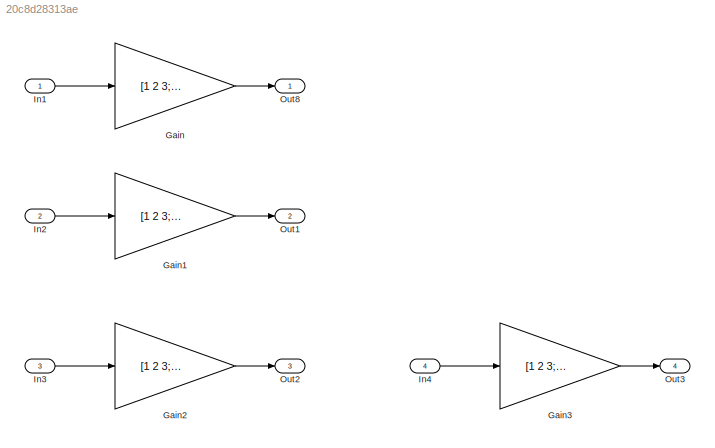
MODEL slx_20c8d28313ae
KIND model
CONFIG AbsTol = auto
CONFIG EnableMultiTasking = off
CONFIG FixedStep = 0.200000
CONFIG MaxStep = auto
CONFIG MinStep = auto
CONFIG RelTol = 1e-3
CONFIG SampleTimeConstraint = Unconstrained
CONFIG Solver = FixedStepDiscrete
CONFIG SolverName = FixedStepDiscrete
CONFIG StartTime = 0.0
CONFIG StopTime = 10.0
BLOCK [Gain] Gain
  Gain = [1 2 3; 4 5 6]
  Multiplication = Matrix(K*u)
  OutDataTypeStr = Inherit: Inherit via internal rule
  ParamDataTypeStr = Inherit: Inherit via internal rule
  SaturateOnIntegerOverflow = off
BLOCK [Gain] Gain1
  Gain = [1 2 3; 4 5 6]
  Multiplication = Matrix(u*K)
  OutDataTypeStr = Inherit: Inherit via internal rule
  ParamDataTypeStr = Inherit: Inherit via internal rule
  SaturateOnIntegerOverflow = off
BLOCK [Gain] Gain2
  Gain = [1 2 3; 4 5 6]
  Multiplication = Matrix(K*u) (u vector)
  OutDataTypeStr = Inherit: Inherit via internal rule
  ParamDataTypeStr = Inherit: Inherit via internal rule
  SaturateOnIntegerOverflow = off
BLOCK [Gain] Gain3
  Gain = [1 2 3; 4 5 6]
  OutDataTypeStr = Inherit: Inherit via internal rule
  ParamDataTypeStr = Inherit: Inherit via internal rule
  SaturateOnIntegerOverflow = off
BLOCK [Inport] In1
  IconDisplay = Port number
  PortDimensions = [3 2]
BLOCK [Inport] In2
  IconDisplay = Port number
  Port = 2
  PortDimensions = [3 2]
BLOCK [Inport] In3
  IconDisplay = Port number
  Port = 3
  PortDimensions = 3
BLOCK [Inport] In4
  IconDisplay = Port number
  Port = 4
  PortDimensions = [2 3]
BLOCK [Outport] Out1
  IconDisplay = Port number
  Port = 2
BLOCK [Outport] Out2
  IconDisplay = Port number
  Port = 3
BLOCK [Outport] Out3
  IconDisplay = Port number
  Port = 4
BLOCK [Outport] Out8
  IconDisplay = Port number
LINE Gain1:1 -> Out1:1
LINE Gain2:1 -> Out2:1
LINE Gain3:1 -> Out3:1
LINE Gain:1 -> Out8:1
LINE In1:1 -> Gain:1
LINE In2:1 -> Gain1:1
LINE In3:1 -> Gain2:1
LINE In4:1 -> Gain3:1
